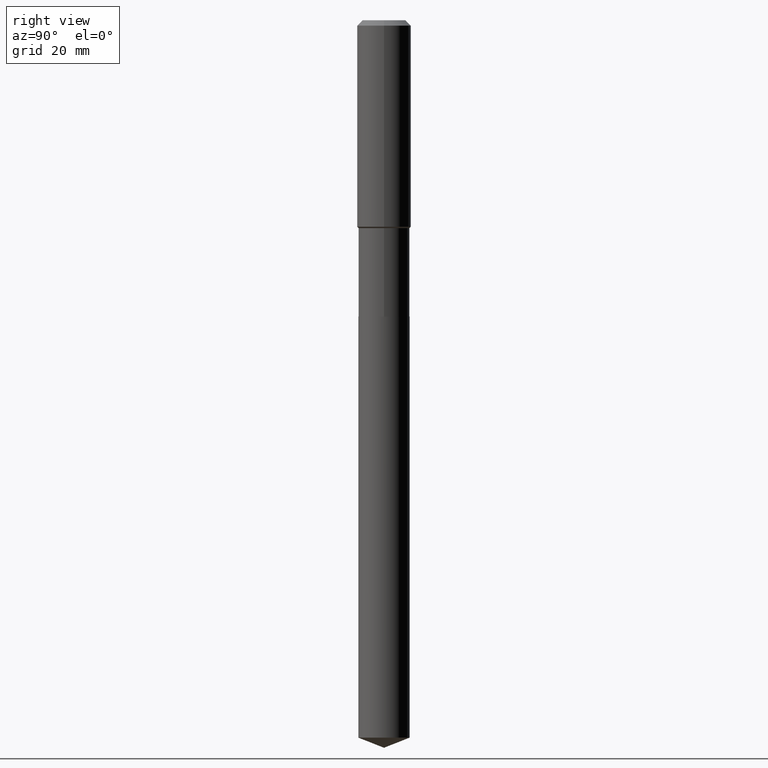
[diagram: clean part render]
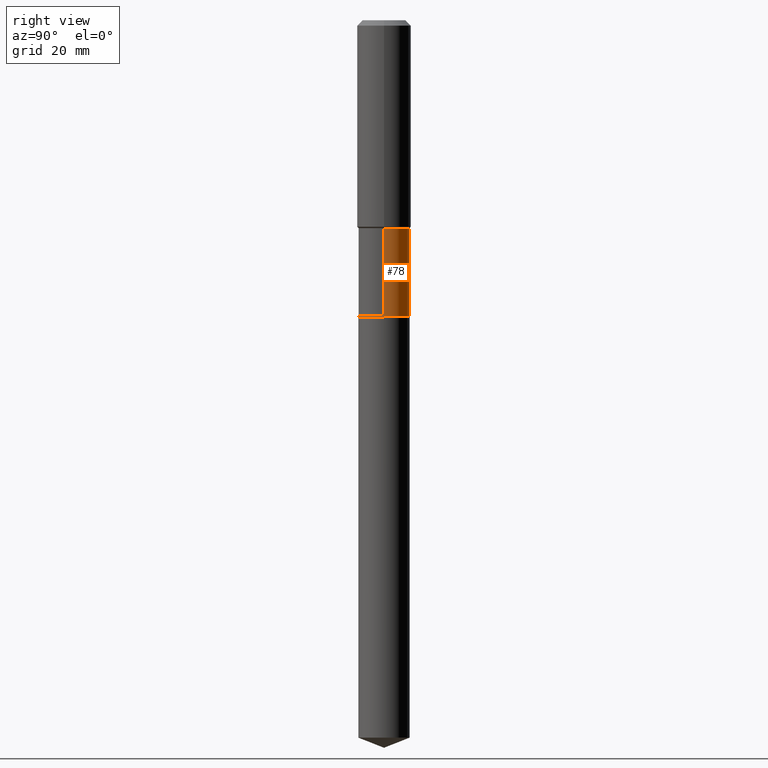
[diagram: same view with one face highlighted and labeled with its STEP entity id]
A machine part, right view. The second image highlights one B-rep face of the part: STEP entity #78.
In plain terms, the highlighted cylindrical surface (edge-blend (fillet) strip) has radius 5.6998 mm, axis along (-0, 0, 1).
Its self-contained STEP definition (entity closure, byte-faithful):
#11 = VERTEX_POINT ( 'NONE', #417 ) ;
#18 = DIRECTION ( 'NONE',  ( 1.000000000000000000, -6.982962677686265922E-15, 0.000000000000000000 ) ) ;
#24 = DIRECTION ( 'NONE',  ( 1.000000000000000000, -6.982962677686266711E-15, 4.876176775795936353E-29 ) ) ;
#25 = CIRCLE ( 'NONE', #426, 0.2244000000000000161 ) ;
#36 = ORIENTED_EDGE ( 'NONE', *, *, #423, .F. ) ;
#53 = CIRCLE ( 'NONE', #195, 0.2243999999999999051 ) ;
#61 = DIRECTION ( 'NONE',  ( -2.445468806185136597E-29, 3.491481338843145583E-15, 1.000000000000000000 ) ) ;
#78 = ADVANCED_FACE ( 'NONE', ( #209 ), #168, .T. ) ;
#86 = ORIENTED_EDGE ( 'NONE', *, *, #161, .T. ) ;
#95 = CARTESIAN_POINT ( 'NONE',  ( 0.2243999999999999329, -1.566976824872797810E-15, 1.094214068488607769E-29 ) ) ;
#118 = CARTESIAN_POINT ( 'NONE',  ( 6.353083411588368076E-29, -9.070519370180611907E-15, -2.597900000000000542 ) ) ;
#139 = VERTEX_POINT ( 'NONE', #471 ) ;
#141 = VERTEX_POINT ( 'NONE', #432 ) ;
#160 = CARTESIAN_POINT ( 'NONE',  ( -0.2243999999999999606, -6.122239581998517513E-15, -2.597900000000000542 ) ) ;
#161 = EDGE_CURVE ( 'NONE', #141, #197, #25, .T. ) ;
#168 = CYLINDRICAL_SURFACE ( 'NONE', #476, 0.2243999999999999329 ) ;
#169 = CARTESIAN_POINT ( 'NONE',  ( -0.2243999999999999329, 1.594457899045664340E-15, -1.103809034253200604E-29 ) ) ;
#195 = AXIS2_PLACEMENT_3D ( 'NONE', #431, #61, #18 ) ;
#197 = VERTEX_POINT ( 'NONE', #160 ) ;
#209 = FACE_OUTER_BOUND ( 'NONE', #240, .T. ) ;
#240 = EDGE_LOOP ( 'NONE', ( #86, #287, #343, #36 ) ) ;
#243 = CARTESIAN_POINT ( 'NONE',  ( 0.000000000000000000, 0.000000000000000000, 0.000000000000000000 ) ) ;
#273 = VECTOR ( 'NONE', #316, 39.37007874015748143 ) ;
#287 = ORIENTED_EDGE ( 'NONE', *, *, #449, .T. ) ;
#316 = DIRECTION ( 'NONE',  ( -2.445468806185136877E-29, 3.491481338843145188E-15, 1.000000000000000000 ) ) ;
#342 = VECTOR ( 'NONE', #434, 39.37007874015748143 ) ;
#343 = ORIENTED_EDGE ( 'NONE', *, *, #442, .F. ) ;
#366 = DIRECTION ( 'NONE',  ( -2.445468806185136597E-29, 3.491481338843145583E-15, 1.000000000000000000 ) ) ;
#383 = DIRECTION ( 'NONE',  ( -2.445468806185136597E-29, 3.491481338843145583E-15, 1.000000000000000000 ) ) ;
#417 = CARTESIAN_POINT ( 'NONE',  ( 0.2243999999999999051, -7.929852416780548622E-15, -1.822400000000000686 ) ) ;
#423 = EDGE_CURVE ( 'NONE', #141, #11, #439, .T. ) ;
#426 = AXIS2_PLACEMENT_3D ( 'NONE', #118, #383, #429 ) ;
#429 = DIRECTION ( 'NONE',  ( 1.000000000000000000, -6.982962677686266711E-15, 0.000000000000000000 ) ) ;
#431 = CARTESIAN_POINT ( 'NONE',  ( 4.456622352391794524E-29, -6.362875591907751010E-15, -1.822400000000000686 ) ) ;
#432 = CARTESIAN_POINT ( 'NONE',  ( 0.2244000000000000161, -1.063749619505341031E-14, -2.597900000000000542 ) ) ;
#434 = DIRECTION ( 'NONE',  ( -2.445468806185136877E-29, 3.491481338843145188E-15, 1.000000000000000000 ) ) ;
#439 = LINE ( 'NONE', #95, #342 ) ;
#442 = EDGE_CURVE ( 'NONE', #11, #139, #53, .T. ) ;
#449 = EDGE_CURVE ( 'NONE', #197, #139, #474, .T. ) ;
#471 = CARTESIAN_POINT ( 'NONE',  ( -0.2243999999999999051, -6.122239581998517513E-15, -1.822400000000000686 ) ) ;
#474 = LINE ( 'NONE', #169, #273 ) ;
#476 = AXIS2_PLACEMENT_3D ( 'NONE', #243, #366, #24 ) ;